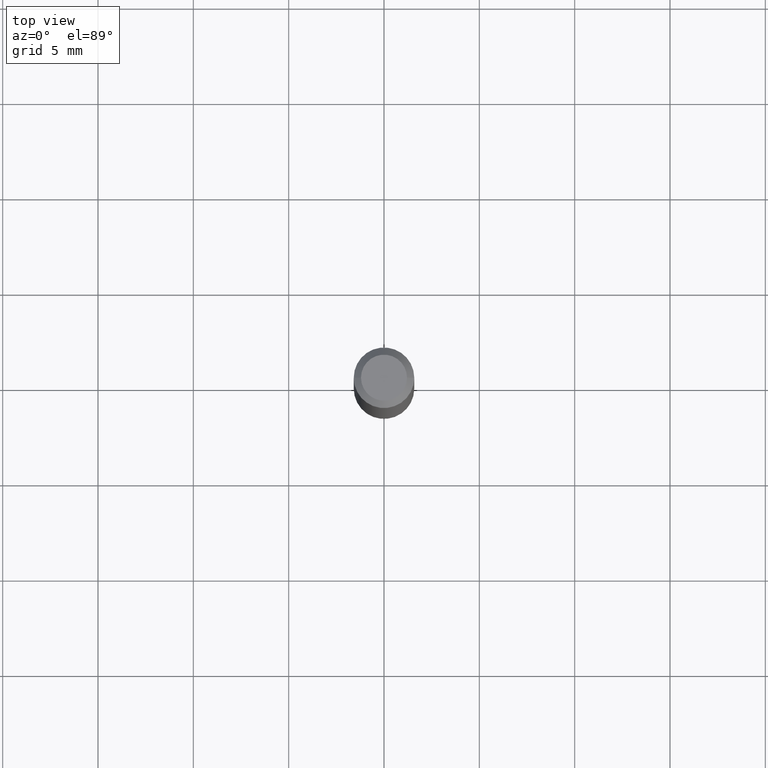
[diagram: clean part render]
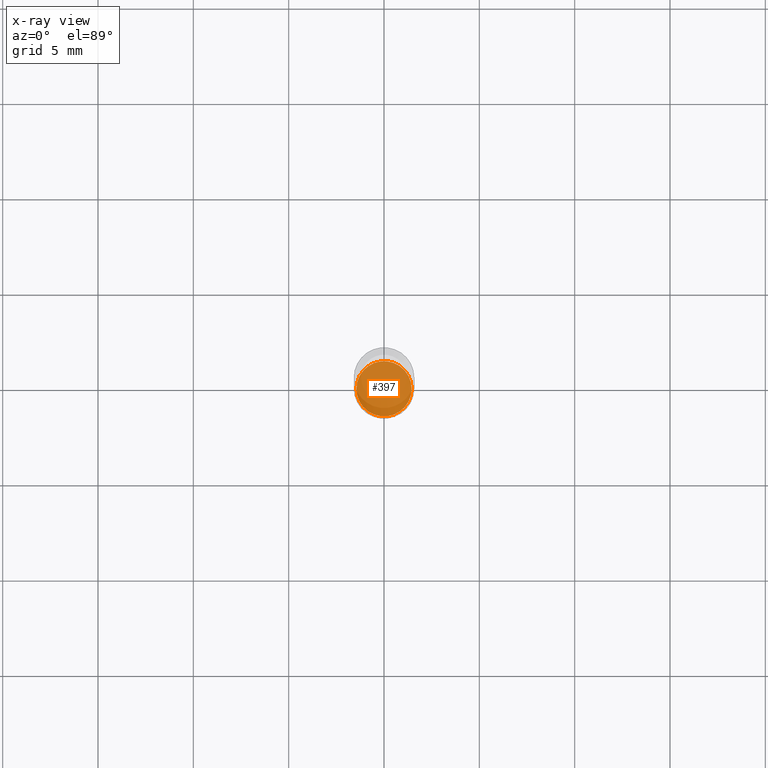
[diagram: x-ray — body ghosted, one internal face saturated and labeled with its STEP entity id]
A machine part, top view, then the same camera in x-ray: the body is ghosted and one INTERNAL B-rep face — a face not visible from any outside direction — is saturated and labeled: STEP entity #397.
In plain terms, the highlighted planar face has unit normal (-0, 0, 1).
Its self-contained STEP definition (entity closure, byte-faithful):
#9 = DIRECTION ( 'NONE',  ( -2.438088387897960049E-29, 3.491481338843145188E-15, 1.000000000000000000 ) ) ;
#15 = DIRECTION ( 'NONE',  ( 1.000000000000000000, -6.982962677686274599E-15, 0.000000000000000000 ) ) ;
#89 = FACE_OUTER_BOUND ( 'NONE', #147, .T. ) ;
#90 = CARTESIAN_POINT ( 'NONE',  ( 3.245137105807676860E-29, -4.633195736644854276E-15, -1.327000000000000179 ) ) ;
#96 = ORIENTED_EDGE ( 'NONE', *, *, #390, .F. ) ;
#110 = CARTESIAN_POINT ( 'NONE',  ( 0.05700000000000005757, -5.031224609272972078E-15, -1.327000000000000179 ) ) ;
#113 = CARTESIAN_POINT ( 'NONE',  ( 3.245137105807676860E-29, -4.633195736644854276E-15, -1.327000000000000179 ) ) ;
#147 = EDGE_LOOP ( 'NONE', ( #96, #320 ) ) ;
#165 = DIRECTION ( 'NONE',  ( 1.000000000000000000, -6.982962677686265922E-15, 4.876176775795935793E-29 ) ) ;
#183 = DIRECTION ( 'NONE',  ( 1.000000000000000000, -6.982962677686274599E-15, 0.000000000000000000 ) ) ;
#188 = AXIS2_PLACEMENT_3D ( 'NONE', #113, #314, #15 ) ;
#197 = AXIS2_PLACEMENT_3D ( 'NONE', #90, #214, #183 ) ;
#210 = CIRCLE ( 'NONE', #188, 0.05700000000000005757 ) ;
#214 = DIRECTION ( 'NONE',  ( -2.445468806185136597E-29, 3.491481338843145583E-15, 1.000000000000000000 ) ) ;
#223 = VERTEX_POINT ( 'NONE', #248 ) ;
#228 = AXIS2_PLACEMENT_3D ( 'NONE', #376, #9, #165 ) ;
#248 = CARTESIAN_POINT ( 'NONE',  ( -0.05700000000000005757, -4.225537150087485609E-15, -1.327000000000000179 ) ) ;
#255 = PLANE ( 'NONE',  #228 ) ;
#314 = DIRECTION ( 'NONE',  ( -2.445468806185136597E-29, 3.491481338843145583E-15, 1.000000000000000000 ) ) ;
#320 = ORIENTED_EDGE ( 'NONE', *, *, #368, .F. ) ;
#368 = EDGE_CURVE ( 'NONE', #223, #387, #421, .T. ) ;
#376 = CARTESIAN_POINT ( 'NONE',  ( 3.245137105807676860E-29, -4.633195736644854276E-15, -1.327000000000000179 ) ) ;
#387 = VERTEX_POINT ( 'NONE', #110 ) ;
#390 = EDGE_CURVE ( 'NONE', #387, #223, #210, .T. ) ;
#397 = ADVANCED_FACE ( 'NONE', ( #89 ), #255, .F. ) ;
#421 = CIRCLE ( 'NONE', #197, 0.05700000000000005757 ) ;